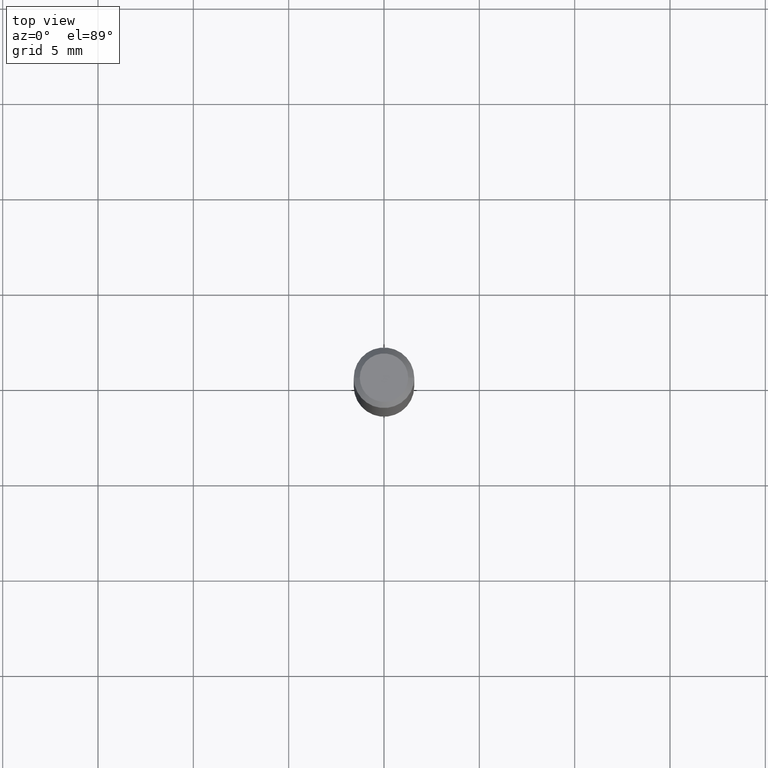
[diagram: clean part render]
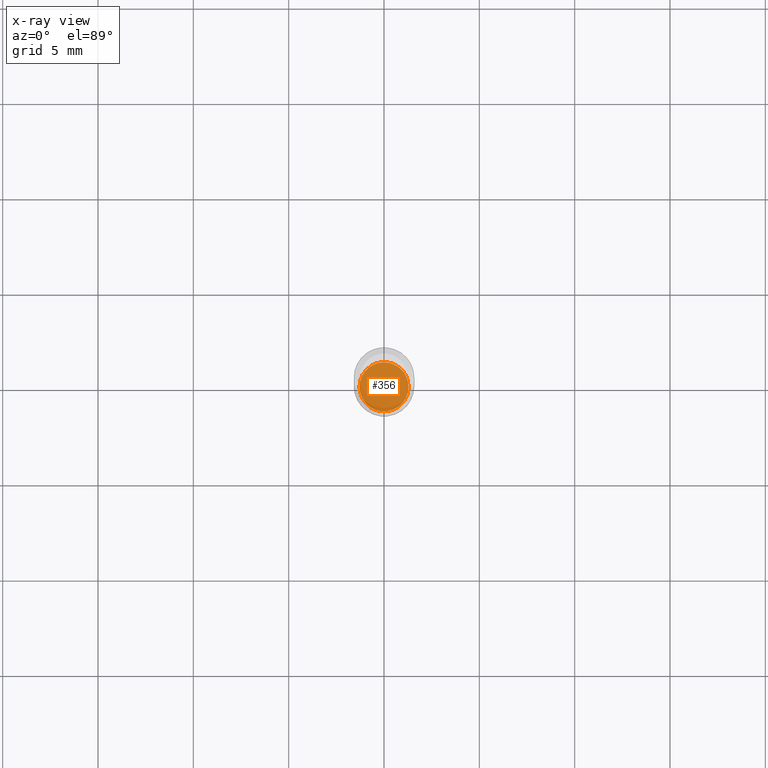
[diagram: x-ray — body ghosted, one internal face saturated and labeled with its STEP entity id]
A machine part, top view, then the same camera in x-ray: the body is ghosted and one INTERNAL B-rep face — a face not visible from any outside direction — is saturated and labeled: STEP entity #356.
In plain terms, the highlighted planar face has unit normal (-0, 0, 1).
Its self-contained STEP definition (entity closure, byte-faithful):
#9 = CIRCLE ( 'NONE', #384, 0.05070000000000000201 ) ;
#27 = CARTESIAN_POINT ( 'NONE',  ( -0.05070000000000000201, -3.477735078522978338E-15, -1.100000000000000089 ) ) ;
#41 = DIRECTION ( 'NONE',  ( -2.445468806185136597E-29, 3.491481338843145583E-15, 1.000000000000000000 ) ) ;
#43 = AXIS2_PLACEMENT_3D ( 'NONE', #435, #243, #401 ) ;
#47 = PLANE ( 'NONE',  #179 ) ;
#83 = VERTEX_POINT ( 'NONE', #27 ) ;
#104 = EDGE_CURVE ( 'NONE', #83, #295, #383, .T. ) ;
#179 = AXIS2_PLACEMENT_3D ( 'NONE', #375, #449, #260 ) ;
#185 = ORIENTED_EDGE ( 'NONE', *, *, #104, .F. ) ;
#216 = CARTESIAN_POINT ( 'NONE',  ( 2.690015686803650369E-29, -3.840629472727460101E-15, -1.100000000000000089 ) ) ;
#243 = DIRECTION ( 'NONE',  ( -2.445468806185136597E-29, 3.491481338843145583E-15, 1.000000000000000000 ) ) ;
#250 = FACE_OUTER_BOUND ( 'NONE', #359, .T. ) ;
#260 = DIRECTION ( 'NONE',  ( 1.000000000000000000, -6.982962677686265922E-15, 4.876176775795935793E-29 ) ) ;
#295 = VERTEX_POINT ( 'NONE', #446 ) ;
#307 = EDGE_CURVE ( 'NONE', #295, #83, #9, .T. ) ;
#356 = ADVANCED_FACE ( 'NONE', ( #250 ), #47, .F. ) ;
#359 = EDGE_LOOP ( 'NONE', ( #391, #185 ) ) ;
#375 = CARTESIAN_POINT ( 'NONE',  ( 2.690015686803650369E-29, -3.840629472727460101E-15, -1.100000000000000089 ) ) ;
#383 = CIRCLE ( 'NONE', #43, 0.05070000000000000201 ) ;
#384 = AXIS2_PLACEMENT_3D ( 'NONE', #216, #41, #414 ) ;
#391 = ORIENTED_EDGE ( 'NONE', *, *, #307, .F. ) ;
#401 = DIRECTION ( 'NONE',  ( 1.000000000000000000, -6.982962677686263555E-15, 0.000000000000000000 ) ) ;
#414 = DIRECTION ( 'NONE',  ( 1.000000000000000000, -6.982962677686263555E-15, 0.000000000000000000 ) ) ;
#435 = CARTESIAN_POINT ( 'NONE',  ( 2.690015686803650369E-29, -3.840629472727460101E-15, -1.100000000000000089 ) ) ;
#446 = CARTESIAN_POINT ( 'NONE',  ( 0.05070000000000000201, -4.194665680486153647E-15, -1.100000000000000089 ) ) ;
#449 = DIRECTION ( 'NONE',  ( -2.438088387897960049E-29, 3.491481338843145188E-15, 1.000000000000000000 ) ) ;